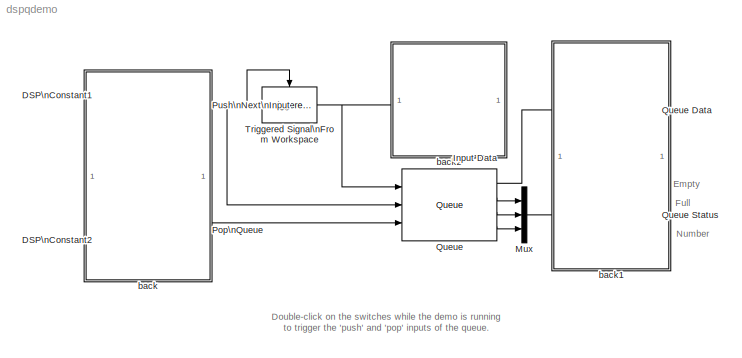
MODEL dspqdemo
KIND model
CONFIG AbsTol = auto
CONFIG FixedStep = auto
CONFIG MaxStep = auto
CONFIG MinStep = auto
CONFIG RelTol = 1e-3
CONFIG Solver = FixedStepDiscrete
CONFIG SolverMode = Auto
CONFIG StartTime = 0.0
CONFIG StopTime = inf
BLOCK [Reference] DSP\nConstant1  REF=dspsrcs4/DSP\nConstant
  FramebasedOutput = off
  InterpretAs1D = on
  Ports = [0, 1]
  SampleMode = Discrete
  SourceBlock = dspsrcs4/DSP\nConstant
  SourceType = DSP Constant
  Ts = 4
  Value = 1
BLOCK [Reference] DSP\nConstant2  REF=dspsrcs4/DSP\nConstant
  FramebasedOutput = off
  InterpretAs1D = on
  Ports = [0, 1]
  SampleMode = Discrete
  SourceBlock = dspsrcs4/DSP\nConstant
  SourceType = DSP Constant
  Ts = 4
  Value = 0
BLOCK [Display] Input Data
  Decimation = 1
  Floating = off
  Format = short
  Ports = [1]
  SampleTime = -1
BLOCK [Mux] Mux
  DisplayOption = bar
  Inputs = 3
  Ports = [3, 1]
BLOCK [Reference] Pop\nQueue  REF=simulink3/Nonlinear/Manual Switch
  Ports = [2, 1]
  SourceBlock = simulink3/Nonlinear/Manual Switch
  SourceType = Manual Switch
  action = 0
  sw = 1
BLOCK [Reference] Push\nNext\nInput  REF=simulink3/Nonlinear/Manual Switch
  Ports = [2, 1]
  SourceBlock = simulink3/Nonlinear/Manual Switch
  SourceType = Manual Switch
  action = 0
  sw = 1
BLOCK [Reference] Queue  REF=dspbuff3/Queue
  Ports = [3, 4]
  SourceBlock = dspbuff3/Queue
  SourceType = Queue
  clr = off
  clrOutport = on
  depth = 3
  eso = on
  fso = on
  nso = on
  overflow = Warning
  pes = Warning
  trigger = Either edge
BLOCK [Display] Queue Data
  Decimation = 1
  Floating = off
  Format = short
  Ports = [1]
  SampleTime = -1
BLOCK [Display] Queue Status
  Decimation = 1
  Floating = off
  Format = short
  Ports = [1]
  SampleTime = -1
BLOCK [Reference] Triggered Signal\nFrom Workspace  REF=dspsrcs4/Triggered Signal\nFrom Workspace
  OutputAfterFinalValue = Setting To Zero
  Ports = [0, 1, 0, 1]
  SamplesPerFrame = 4
  Signal = 1:16
  SourceBlock = dspsrcs4/Triggered Signal\nFrom Workspace
  SourceType = Triggered Signal From Workspace
  TriggerType = Either edge
  ic = 0
BLOCK [SubSystem] back
  Ports = []
  RTWFcnNameOpts = Auto
  RTWFileNameOpts = Auto
  RTWSystemCode = Auto
  ShowPortLabels = on
  TreatAsAtomicUnit = off
BLOCK [SubSystem] back1
  Ports = []
  RTWFcnNameOpts = Auto
  RTWFileNameOpts = Auto
  RTWSystemCode = Auto
  ShowPortLabels = on
  TreatAsAtomicUnit = off
BLOCK [SubSystem] back2
  Ports = []
  RTWFcnNameOpts = Auto
  RTWFileNameOpts = Auto
  RTWSystemCode = Auto
  ShowPortLabels = on
  TreatAsAtomicUnit = off
ANNOTATION (root): Double-click on the switches while the demo is running\nto trigger the 'push' and 'pop' inputs of the queue.
ANNOTATION (root): Empty
ANNOTATION (root): Full
ANNOTATION (root): Number
NET DSP\nConstant1:1 -> Pop\nQueue:1, Push\nNext\nInput:1
NET DSP\nConstant2:1 -> Pop\nQueue:2, Push\nNext\nInput:2
LINE Mux:1 -> Queue Status:1
LINE Pop\nQueue:1 -> Queue:3
NET Push\nNext\nInput:1 -> Queue:2, Triggered Signal\nFrom Workspace:trigger
LINE Queue:1 -> Queue Data:1
LINE Queue:2 -> Mux:1
LINE Queue:3 -> Mux:2
LINE Queue:4 -> Mux:3
NET Triggered Signal\nFrom Workspace:1 -> Input Data:1, Queue:1
note: NET lines group one-source signal fan-out (src -> all destinations, sorted); 1:1 wires keep LINE
